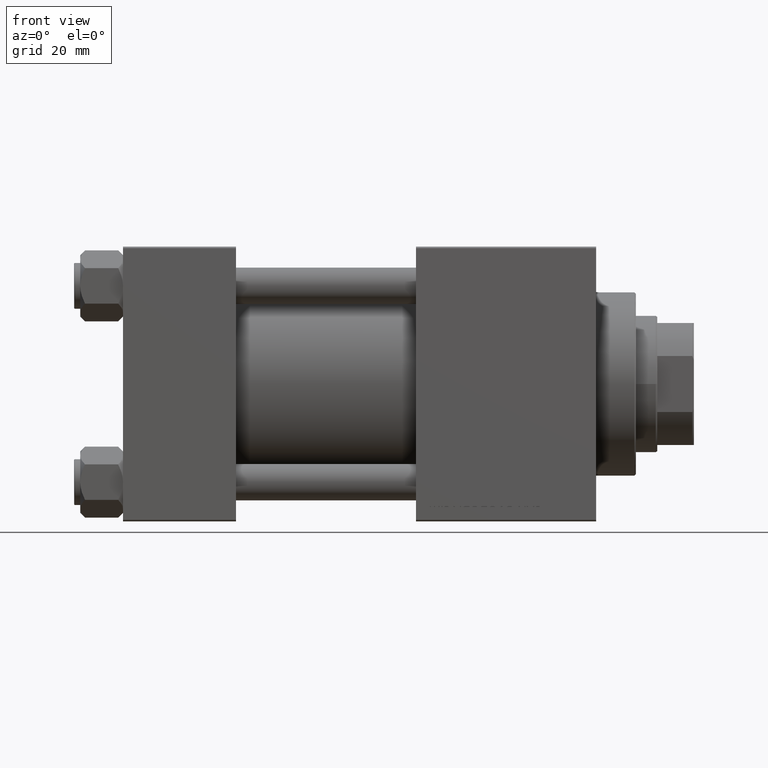
[diagram: clean part render]
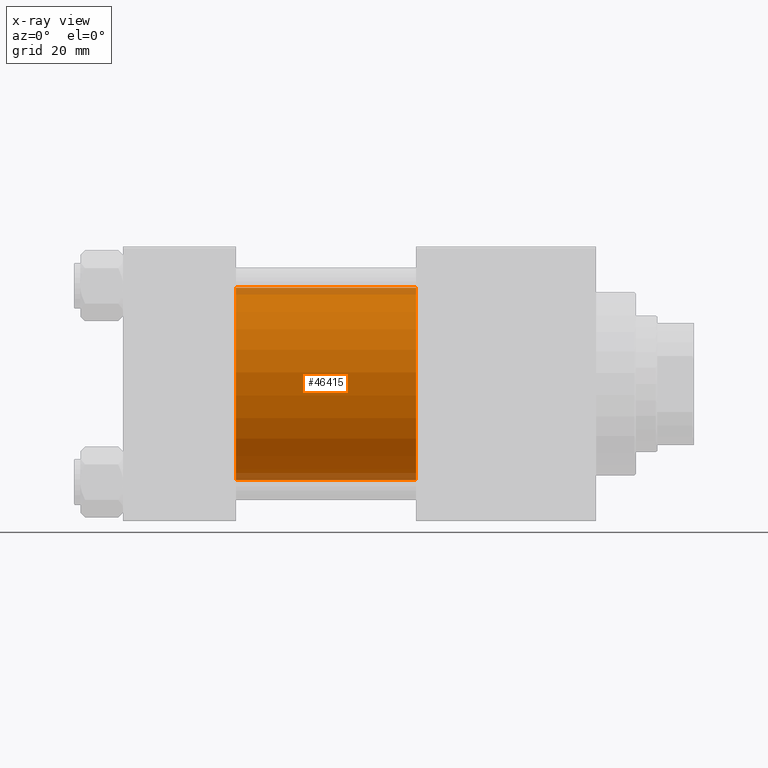
[diagram: x-ray — body ghosted, one internal face saturated and labeled with its STEP entity id]
A machine part, front view, then the same camera in x-ray: the body is ghosted and one INTERNAL B-rep face — a face not visible from any outside direction — is saturated and labeled: STEP entity #46415.
In plain terms, the highlighted cylindrical surface (partial cylindrical patch) has radius 31.5 mm, axis along (-1, -0, -0).
Its self-contained STEP definition (entity closure, byte-faithful):
#1177 = VERTEX_POINT ( 'NONE', #32303 ) ;
#1186 = CARTESIAN_POINT ( 'NONE',  ( 37.00000000000000000, 1.255552203348951850E-15, -31.50000000000000000 ) ) ;
#1979 = VERTEX_POINT ( 'NONE', #46747 ) ;
#4210 = AXIS2_PLACEMENT_3D ( 'NONE', #12456, #19578, #27968 ) ;
#4969 = DIRECTION ( 'NONE',  ( -1.000000000000000000, -0.000000000000000000, -0.000000000000000000 ) ) ;
#7907 = AXIS2_PLACEMENT_3D ( 'NONE', #33754, #49247, #14418 ) ;
#8122 = CYLINDRICAL_SURFACE ( 'NONE', #4210, 31.50000000000000000 ) ;
#9199 = ORIENTED_EDGE ( 'NONE', *, *, #41001, .F. ) ;
#9891 = ORIENTED_EDGE ( 'NONE', *, *, #30795, .F. ) ;
#12424 = CARTESIAN_POINT ( 'NONE',  ( 96.00000000000000000, 1.255552203348951850E-15, -31.50000000000000000 ) ) ;
#12456 = CARTESIAN_POINT ( 'NONE',  ( 96.00000000000000000, -2.602085213965210642E-15, 0.000000000000000000 ) ) ;
#12970 = EDGE_CURVE ( 'NONE', #24681, #34144, #48898, .T. ) ;
#14418 = DIRECTION ( 'NONE',  ( 0.000000000000000000, 0.000000000000000000, -1.000000000000000000 ) ) ;
#16141 = DIRECTION ( 'NONE',  ( 1.000000000000000000, 0.000000000000000000, 0.000000000000000000 ) ) ;
#17882 = CARTESIAN_POINT ( 'NONE',  ( 96.00000000000000000, 1.255552203348951850E-15, -31.50000000000000000 ) ) ;
#19578 = DIRECTION ( 'NONE',  ( -1.000000000000000000, -0.000000000000000000, -0.000000000000000000 ) ) ;
#22053 = EDGE_LOOP ( 'NONE', ( #40494, #49371, #9891, #9199 ) ) ;
#24309 = LINE ( 'NONE', #39821, #25184 ) ;
#24681 = VERTEX_POINT ( 'NONE', #12424 ) ;
#25184 = VECTOR ( 'NONE', #4969, 1000.000000000000000 ) ;
#25771 = AXIS2_PLACEMENT_3D ( 'NONE', #47665, #16141, #47926 ) ;
#27968 = DIRECTION ( 'NONE',  ( 0.000000000000000000, 0.000000000000000000, 1.000000000000000000 ) ) ;
#30795 = EDGE_CURVE ( 'NONE', #1177, #34144, #45257, .T. ) ;
#32303 = CARTESIAN_POINT ( 'NONE',  ( 37.00000000000000000, -2.602085213965210642E-15, 31.50000000000000000 ) ) ;
#32518 = EDGE_CURVE ( 'NONE', #1979, #24681, #37167, .T. ) ;
#33754 = CARTESIAN_POINT ( 'NONE',  ( 96.00000000000000000, -2.602085213965210642E-15, 0.000000000000000000 ) ) ;
#34144 = VERTEX_POINT ( 'NONE', #1186 ) ;
#37167 = CIRCLE ( 'NONE', #7907, 31.50000000000000000 ) ;
#37220 = DIRECTION ( 'NONE',  ( -1.000000000000000000, -0.000000000000000000, -0.000000000000000000 ) ) ;
#39821 = CARTESIAN_POINT ( 'NONE',  ( 96.00000000000000000, -2.602085213965210642E-15, 31.50000000000000000 ) ) ;
#40494 = ORIENTED_EDGE ( 'NONE', *, *, #32518, .T. ) ;
#41001 = EDGE_CURVE ( 'NONE', #1979, #1177, #24309, .T. ) ;
#44854 = VECTOR ( 'NONE', #37220, 1000.000000000000000 ) ;
#45257 = CIRCLE ( 'NONE', #25771, 31.50000000000000000 ) ;
#46415 = ADVANCED_FACE ( 'NONE', ( #47284 ), #8122, .F. ) ;
#46747 = CARTESIAN_POINT ( 'NONE',  ( 96.00000000000000000, -2.602085213965210642E-15, 31.50000000000000000 ) ) ;
#47284 = FACE_OUTER_BOUND ( 'NONE', #22053, .T. ) ;
#47665 = CARTESIAN_POINT ( 'NONE',  ( 37.00000000000000000, -2.602085213965210642E-15, 0.000000000000000000 ) ) ;
#47926 = DIRECTION ( 'NONE',  ( 0.000000000000000000, 0.000000000000000000, -1.000000000000000000 ) ) ;
#48898 = LINE ( 'NONE', #17882, #44854 ) ;
#49247 = DIRECTION ( 'NONE',  ( 1.000000000000000000, 0.000000000000000000, 0.000000000000000000 ) ) ;
#49371 = ORIENTED_EDGE ( 'NONE', *, *, #12970, .T. ) ;